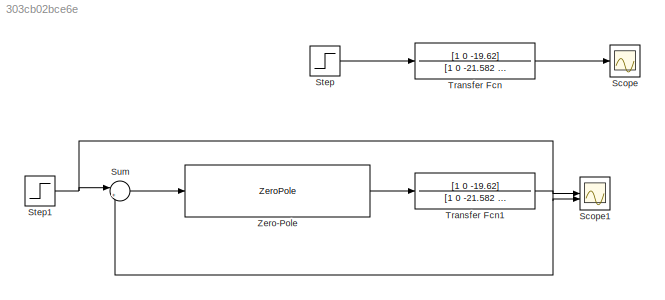
MODEL slx_303cb02bce6e
KIND model
CONFIG AbsTol = auto
CONFIG EnableMultiTasking = off
CONFIG FixedStep = auto
CONFIG MaxStep = auto
CONFIG MinStep = auto
CONFIG RelTol = 1e-3
CONFIG SampleTimeConstraint = Unconstrained
CONFIG SolverName = VariableStepAuto
CONFIG StartTime = 0.0
CONFIG StopTime = 10
BLOCK [Scope] Scope
  Floating = off
  NumInputPorts = 1
  ScopeSpecificationString = Simulink.scopes.TimeScopeBlockCfg('CurrentConfiguration', extmgr.ConfigurationSet(extmgr.Configuration('Core','General UI',true),extmgr.Configuration('Core','Source UI',true),extmgr.Configuration('Sources','WiredSimulink',true),extmgr.Configuration('Visuals','Time Domain',true,'SerializedDisplays',{struct('MinYLimReal','-39496113229654904.00000','MaxYLimReal','355465019066894208.00000','YLabelReal...<+1579ch>
BLOCK [Scope] Scope1
  Floating = off
  NumInputPorts = 2
  ScopeSpecificationString = Simulink.scopes.TimeScopeBlockCfg('CurrentConfiguration', extmgr.ConfigurationSet(extmgr.Configuration('Core','General UI',true),extmgr.Configuration('Core','Source UI',true),extmgr.Configuration('Sources','WiredSimulink',true,'DataLoggingVariableName','ScopeData1'),extmgr.Configuration('Visuals','Time Domain',true,'SerializedDisplays',{struct('MinYLimReal','-5.39975','MaxYLimReal','27.48088','YLa...<+1521ch>
BLOCK [Step] Step
  SampleTime = 0
  Time = 0
BLOCK [Step] Step1
  SampleTime = 0
BLOCK [Sum] Sum
  Inputs = |+-
BLOCK [TransferFcn] Transfer Fcn
  Denominator = [1 0 -21.582 0 0]
  Numerator = [1 0 -19.62]
BLOCK [TransferFcn] Transfer Fcn1
  Denominator = [1 0 -21.582 0 0]
  Numerator = [1 0 -19.62]
BLOCK [ZeroPole] Zero-Pole
  Gain = [22.987]
  Poles = [-4.187 -4.187 -4.187]
  Zeros = [-2.958 -2.958 -2.958]
NET Step1:1 -> Scope1:1, Sum:1
LINE Step:1 -> Transfer Fcn:1
LINE Sum:1 -> Zero-Pole:1
NET Transfer Fcn1:1 -> Scope1:2, Sum:2
LINE Transfer Fcn:1 -> Scope:1
LINE Zero-Pole:1 -> Transfer Fcn1:1
note: NET lines group one-source signal fan-out (src -> all destinations, sorted); 1:1 wires keep LINE
